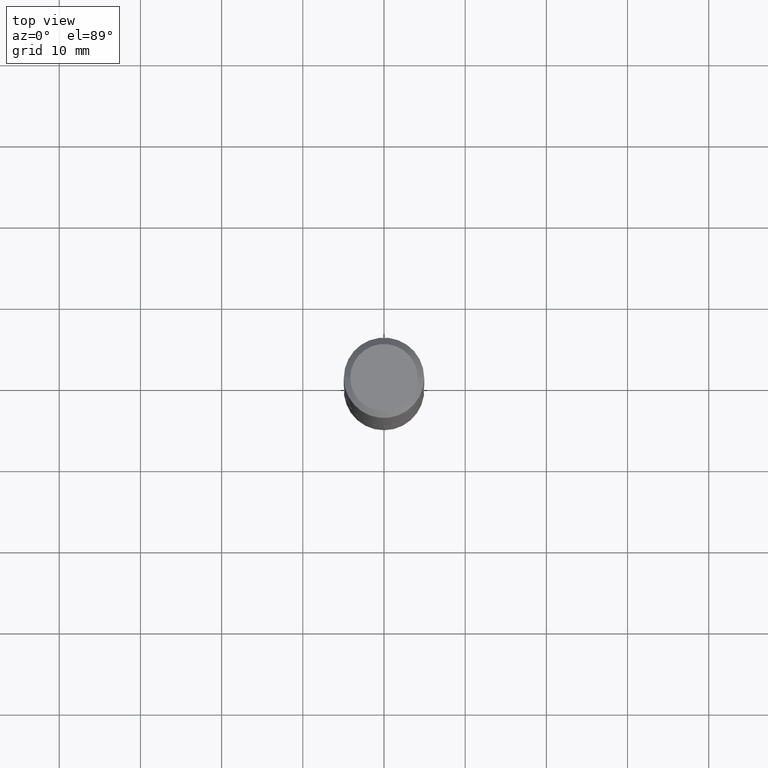
[diagram: clean part render]
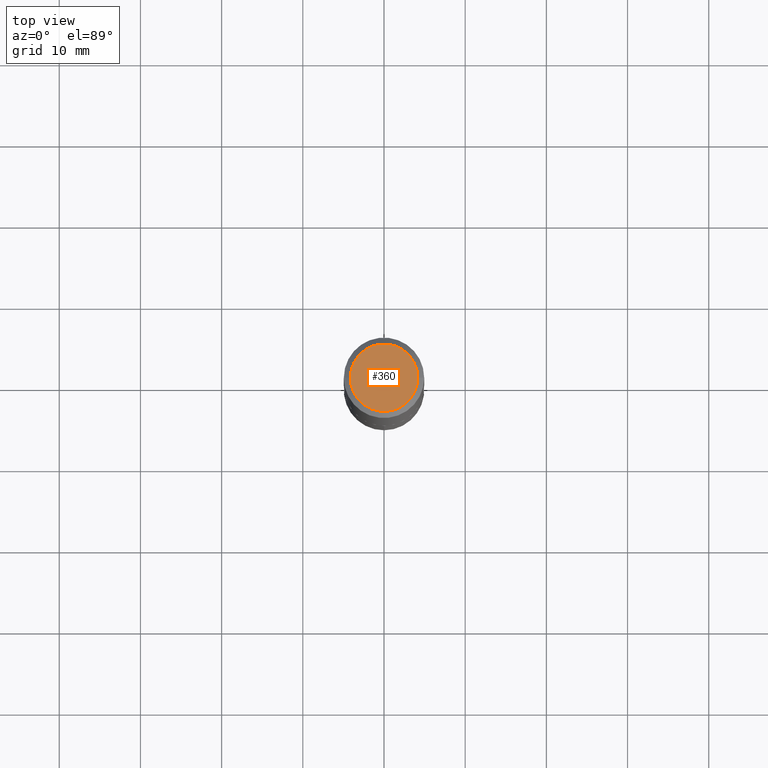
[diagram: same view with one face highlighted and labeled with its STEP entity id]
A machine part, top view. The second image highlights one B-rep face of the part: STEP entity #360.
In plain terms, the highlighted planar face has unit normal (0, -0, -1).
Its self-contained STEP definition (entity closure, byte-faithful):
#12 = VERTEX_POINT ( 'NONE', #272 ) ;
#21 = DIRECTION ( 'NONE',  ( 1.000000000000000000, -6.982962677686266711E-15, 4.876171972610107408E-29 ) ) ;
#45 = CARTESIAN_POINT ( 'NONE',  ( 0.1636499999999999622, -1.284470174469915757E-15, 2.449293598379592612E-19 ) ) ;
#89 = VERTEX_POINT ( 'NONE', #45 ) ;
#91 = EDGE_LOOP ( 'NONE', ( #240, #356 ) ) ;
#99 = EDGE_CURVE ( 'NONE', #12, #89, #273, .T. ) ;
#136 = CARTESIAN_POINT ( 'NONE',  ( -5.989671091818699506E-48, 8.551662891794013634E-34, 2.449293598294725547E-19 ) ) ;
#140 = FACE_OUTER_BOUND ( 'NONE', #91, .T. ) ;
#154 = AXIS2_PLACEMENT_3D ( 'NONE', #136, #279, #377 ) ;
#169 = AXIS2_PLACEMENT_3D ( 'NONE', #354, #233, #21 ) ;
#170 = DIRECTION ( 'NONE',  ( -1.000000000000000000, 6.982962677686265922E-15, -4.876176775795935793E-29 ) ) ;
#174 = CIRCLE ( 'NONE', #169, 0.1636499999999999622 ) ;
#233 = DIRECTION ( 'NONE',  ( -2.445468806185136597E-29, 3.491481338843145583E-15, 1.000000000000000000 ) ) ;
#240 = ORIENTED_EDGE ( 'NONE', *, *, #99, .T. ) ;
#261 = AXIS2_PLACEMENT_3D ( 'NONE', #293, #352, #170 ) ;
#272 = CARTESIAN_POINT ( 'NONE',  ( -0.1636499999999999622, 1.197316238122780624E-15, 2.449293598212901450E-19 ) ) ;
#273 = CIRCLE ( 'NONE', #154, 0.1636499999999999622 ) ;
#279 = DIRECTION ( 'NONE',  ( -2.445468806185136597E-29, 3.491481338843145583E-15, 1.000000000000000000 ) ) ;
#293 = CARTESIAN_POINT ( 'NONE',  ( -2.994835545909349753E-48, 4.275831445897006817E-34, 1.224646799147362773E-19 ) ) ;
#297 = EDGE_CURVE ( 'NONE', #89, #12, #174, .T. ) ;
#348 = PLANE ( 'NONE',  #261 ) ;
#352 = DIRECTION ( 'NONE',  ( 2.438088387897960049E-29, -3.491481338843145188E-15, -1.000000000000000000 ) ) ;
#354 = CARTESIAN_POINT ( 'NONE',  ( -5.989671091818699506E-48, 8.551662891794013634E-34, 2.449293598294725547E-19 ) ) ;
#356 = ORIENTED_EDGE ( 'NONE', *, *, #297, .T. ) ;
#360 = ADVANCED_FACE ( 'NONE', ( #140 ), #348, .F. ) ;
#377 = DIRECTION ( 'NONE',  ( 1.000000000000000000, -6.982962677686266711E-15, 4.876171972610107408E-29 ) ) ;